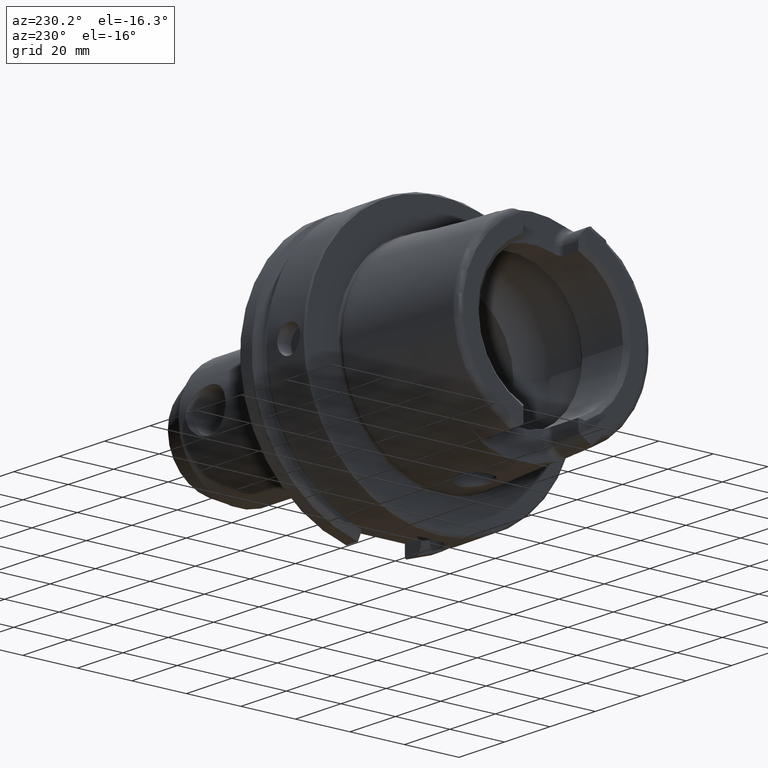
[diagram: clean part render]
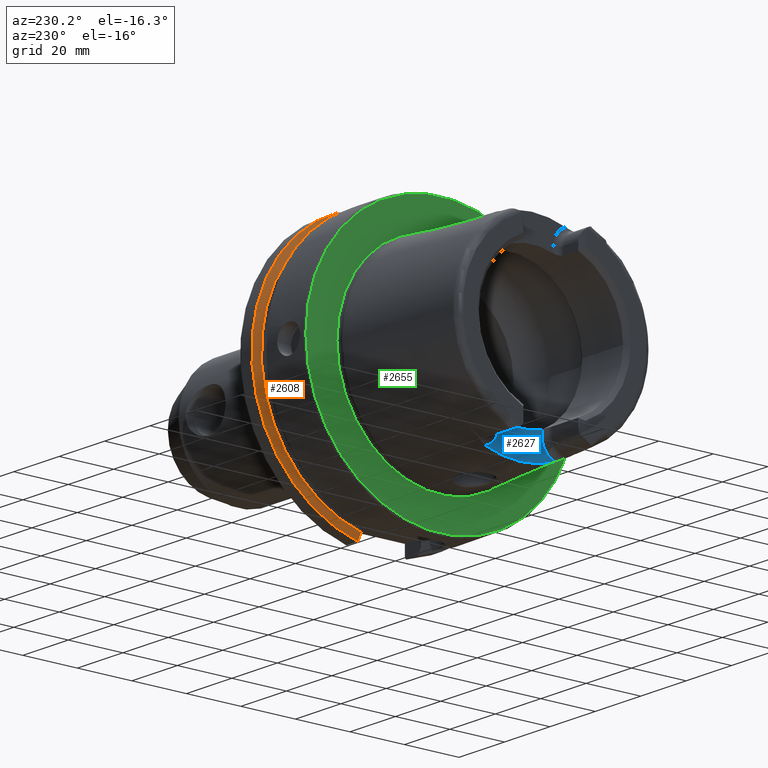
[diagram: same view with three faces highlighted in distinct colors, each labeled with its STEP entity id]
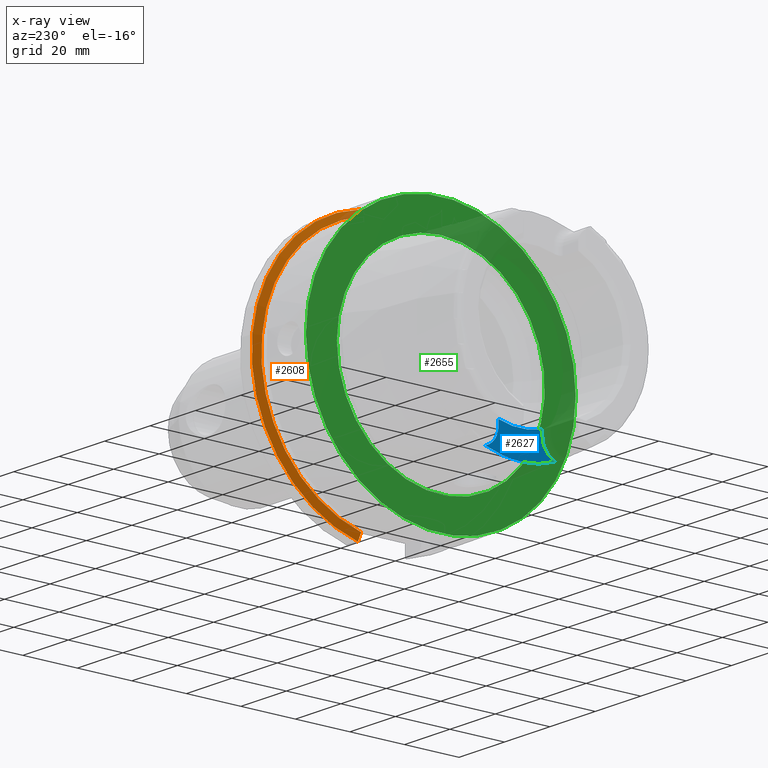
[diagram: x-ray of the same camera — body ghosted, the three highlighted faces saturated]
A machine part, auxiliary view with three faces highlighted in distinct colors.
The next image is the same camera in x-ray (body ghosted, the three faces saturated) — at least one of them is partly hidden behind the body in this view.
Their STEP definitions:

[orange] entity #2608 — the highlighted conical surface has half-angle 60 deg.
#30=(
BOUNDED_CURVE()
B_SPLINE_CURVE(2,(#5565,#5566,#5567),.UNSPECIFIED.,.F.,.F.)
B_SPLINE_CURVE_WITH_KNOTS((3,3),(0.,0.28292349080556),.UNSPECIFIED.)
CURVE()
GEOMETRIC_REPRESENTATION_ITEM()
RATIONAL_B_SPLINE_CURVE((1.,1.0003193410929,1.))
REPRESENTATION_ITEM('')
);
#33=(
BOUNDED_CURVE()
B_SPLINE_CURVE(2,(#5656,#5657,#5658),.UNSPECIFIED.,.F.,.F.)
B_SPLINE_CURVE_WITH_KNOTS((3,3),(0.,0.281931851964124),.UNSPECIFIED.)
CURVE()
GEOMETRIC_REPRESENTATION_ITEM()
RATIONAL_B_SPLINE_CURVE((1.,1.00031639802473,1.))
REPRESENTATION_ITEM('')
);
#81=CONICAL_SURFACE('',#2886,48.7987976320958,1.0471975511966);
#516=CIRCLE('',#2883,50.);
#518=CIRCLE('',#2887,47.5975952641917);
#704=FACE_OUTER_BOUND('',#854,.T.);
#854=EDGE_LOOP('',(#2234,#2235,#2236,#2237));
#1219=VERTEX_POINT('',#5562);
#1220=VERTEX_POINT('',#5564);
#1233=VERTEX_POINT('',#5648);
#1234=VERTEX_POINT('',#5654);
#1575=EDGE_CURVE('',#1220,#1219,#30,.T.);
#1596=EDGE_CURVE('',#1220,#1233,#516,.T.);
#1599=EDGE_CURVE('',#1219,#1234,#518,.T.);
#1600=EDGE_CURVE('',#1234,#1233,#33,.T.);
#2234=ORIENTED_EDGE('',*,*,#1575,.T.);
#2235=ORIENTED_EDGE('',*,*,#1599,.T.);
#2236=ORIENTED_EDGE('',*,*,#1600,.T.);
#2237=ORIENTED_EDGE('',*,*,#1596,.F.);
#2608=ADVANCED_FACE('',(#704),#81,.T.);
#2883=AXIS2_PLACEMENT_3D('',#5649,#3506,#3507);
#2886=AXIS2_PLACEMENT_3D('',#5653,#3513,#3514);
#2887=AXIS2_PLACEMENT_3D('',#5655,#3515,#3516);
#3506=DIRECTION('center_axis',(1.,0.,0.));
#3507=DIRECTION('ref_axis',(0.,0.,-1.));
#3513=DIRECTION('center_axis',(1.,0.,0.));
#3514=DIRECTION('ref_axis',(0.,1.,0.));
#3515=DIRECTION('center_axis',(1.,0.,0.));
#3516=DIRECTION('ref_axis',(0.,0.,-1.));
#5562=CARTESIAN_POINT('',(21.875,11.,-46.3090819919138));
#5564=CARTESIAN_POINT('',(23.2620290209214,11.,-48.7749935930288));
#5565=CARTESIAN_POINT('Ctrl Pts',(23.2620290209214,11.,-48.7749935930288));
#5566=CARTESIAN_POINT('Ctrl Pts',(22.5505288964237,11.,-47.5116880808802));
#5567=CARTESIAN_POINT('Ctrl Pts',(21.875,11.,-46.3090819919138));
#5648=CARTESIAN_POINT('',(23.2620290209214,10.,48.9897948556636));
#5649=CARTESIAN_POINT('Origin',(23.2620290209214,0.,0.));
#5653=CARTESIAN_POINT('Origin',(22.5685145104607,0.,0.));
#5654=CARTESIAN_POINT('',(21.875,10.,46.5352670018535));
#5655=CARTESIAN_POINT('Origin',(21.875,0.,0.));
#5656=CARTESIAN_POINT('Ctrl Pts',(21.875,10.,46.5352670018535));
#5657=CARTESIAN_POINT('Ctrl Pts',(22.5506945724782,10.,47.7323213251992));
#5658=CARTESIAN_POINT('Ctrl Pts',(23.2620290209214,10.,48.9897948556636));

[blue] entity #2627 — the highlighted planar face has unit normal (-1, 0, 0).
#139=PLANE('',#2922);
#259=LINE('',#5767,#383);
#262=LINE('',#5779,#386);
#383=VECTOR('',#3586,10.);
#386=VECTOR('',#3601,10.);
#476=CIRCLE('',#2814,36.25399498998);
#532=CIRCLE('',#2916,6.88);
#535=CIRCLE('',#2923,26.5);
#536=CIRCLE('',#2924,6.88);
#723=FACE_OUTER_BOUND('',#873,.T.);
#873=EDGE_LOOP('',(#2327,#2328,#2329,#2330,#2331,#2332));
#1139=VERTEX_POINT('',#4829);
#1140=VERTEX_POINT('',#4840);
#1248=VERTEX_POINT('',#5751);
#1250=VERTEX_POINT('',#5756);
#1252=VERTEX_POINT('',#5776);
#1253=VERTEX_POINT('',#5778);
#1467=EDGE_CURVE('',#1139,#1140,#476,.T.);
#1628=EDGE_CURVE('',#1248,#1139,#532,.T.);
#1630=EDGE_CURVE('',#1250,#1248,#259,.T.);
#1635=EDGE_CURVE('',#1252,#1250,#535,.T.);
#1636=EDGE_CURVE('',#1253,#1252,#262,.T.);
#1637=EDGE_CURVE('',#1140,#1253,#536,.T.);
#2327=ORIENTED_EDGE('',*,*,#1628,.F.);
#2328=ORIENTED_EDGE('',*,*,#1630,.F.);
#2329=ORIENTED_EDGE('',*,*,#1635,.F.);
#2330=ORIENTED_EDGE('',*,*,#1636,.F.);
#2331=ORIENTED_EDGE('',*,*,#1637,.F.);
#2332=ORIENTED_EDGE('',*,*,#1467,.F.);
#2627=ADVANCED_FACE('',(#723),#139,.T.);
#2814=AXIS2_PLACEMENT_3D('',#4841,#3325,#3326);
#2916=AXIS2_PLACEMENT_3D('',#5753,#3582,#3583);
#2922=AXIS2_PLACEMENT_3D('',#5775,#3597,#3598);
#2923=AXIS2_PLACEMENT_3D('',#5777,#3599,#3600);
#2924=AXIS2_PLACEMENT_3D('',#5780,#3602,#3603);
#3325=DIRECTION('center_axis',(1.,0.,0.));
#3326=DIRECTION('ref_axis',(0.,1.,0.));
#3582=DIRECTION('center_axis',(-1.,0.,0.));
#3583=DIRECTION('ref_axis',(0.,0.510937901715381,-0.8596176246394));
#3586=DIRECTION('',(0.,0.,-1.));
#3597=DIRECTION('center_axis',(-1.,0.,0.));
#3598=DIRECTION('ref_axis',(0.,0.,1.));
#3599=DIRECTION('center_axis',(-1.,0.,0.));
#3600=DIRECTION('ref_axis',(0.,1.,0.));
#3601=DIRECTION('',(0.,0.,1.));
#3602=DIRECTION('center_axis',(-1.,0.,0.));
#3603=DIRECTION('ref_axis',(0.,-0.510937901715381,-0.8596176246394));
#4829=CARTESIAN_POINT('',(-35.,-12.7918651267415,-33.9222690767105));
#4840=CARTESIAN_POINT('',(-35.,12.7918651267415,-33.9222690767105));
#4841=CARTESIAN_POINT('Origin',(-35.,0.,0.));
#5751=CARTESIAN_POINT('',(-35.,-8.01,-27.37));
#5753=CARTESIAN_POINT('Origin',(-35.,-14.89,-27.37));
#5756=CARTESIAN_POINT('',(-35.,-8.01,-25.2604414054862));
#5767=CARTESIAN_POINT('',(-35.,-8.01,-28.685));
#5775=CARTESIAN_POINT('Origin',(-35.,8.88178419700125E-15,-30.));
#5776=CARTESIAN_POINT('',(-35.,8.01,-25.2604414054862));
#5777=CARTESIAN_POINT('Origin',(-35.,0.,0.));
#5778=CARTESIAN_POINT('',(-35.,8.01,-27.37));
#5779=CARTESIAN_POINT('',(-35.,8.01,-25.));
#5780=CARTESIAN_POINT('Origin',(-35.,14.89,-27.37));

[green] entity #2655 — the highlighted planar face has unit normal (-1, 0, 0).
#108=FACE_BOUND('',#905,.T.);
#148=PLANE('',#2991);
#574=CIRCLE('',#2989,38.1200032685857);
#575=CIRCLE('',#2990,38.1200032685857);
#576=CIRCLE('',#2992,49.5);
#577=CIRCLE('',#2993,49.5);
#751=FACE_OUTER_BOUND('',#904,.T.);
#904=EDGE_LOOP('',(#2490,#2491));
#905=EDGE_LOOP('',(#2492,#2493));
#1280=VERTEX_POINT('',#5903);
#1281=VERTEX_POINT('',#5905);
#1282=VERTEX_POINT('',#5909);
#1283=VERTEX_POINT('',#5910);
#1688=EDGE_CURVE('',#1281,#1280,#574,.T.);
#1689=EDGE_CURVE('',#1280,#1281,#575,.T.);
#1690=EDGE_CURVE('',#1282,#1283,#576,.T.);
#1691=EDGE_CURVE('',#1283,#1282,#577,.T.);
#2490=ORIENTED_EDGE('',*,*,#1690,.F.);
#2491=ORIENTED_EDGE('',*,*,#1691,.F.);
#2492=ORIENTED_EDGE('',*,*,#1688,.T.);
#2493=ORIENTED_EDGE('',*,*,#1689,.T.);
#2655=ADVANCED_FACE('',(#751,#108),#148,.T.);
#2989=AXIS2_PLACEMENT_3D('',#5906,#3743,#3744);
#2990=AXIS2_PLACEMENT_3D('',#5907,#3745,#3746);
#2991=AXIS2_PLACEMENT_3D('',#5908,#3747,#3748);
#2992=AXIS2_PLACEMENT_3D('',#5911,#3749,#3750);
#2993=AXIS2_PLACEMENT_3D('',#5912,#3751,#3752);
#3743=DIRECTION('center_axis',(1.,0.,0.));
#3744=DIRECTION('ref_axis',(0.,0.,-1.));
#3745=DIRECTION('center_axis',(1.,0.,0.));
#3746=DIRECTION('ref_axis',(0.,0.,-1.));
#3747=DIRECTION('center_axis',(-1.,0.,0.));
#3748=DIRECTION('ref_axis',(0.,0.,1.));
#3749=DIRECTION('center_axis',(1.,0.,0.));
#3750=DIRECTION('ref_axis',(0.,0.,-1.));
#3751=DIRECTION('center_axis',(1.,0.,0.));
#3752=DIRECTION('ref_axis',(0.,0.,-1.));
#5903=CARTESIAN_POINT('',(0.,-4.66835399863601E-15,38.1200032685857));
#5905=CARTESIAN_POINT('',(0.,38.1200032685857,0.));
#5906=CARTESIAN_POINT('Origin',(0.,0.,0.));
#5907=CARTESIAN_POINT('Origin',(0.,0.,0.));
#5908=CARTESIAN_POINT('Origin',(0.,49.5,0.));
#5909=CARTESIAN_POINT('',(0.,49.5,0.));
#5910=CARTESIAN_POINT('',(8.67361737988404E-16,-49.5,-6.0620016557794E-15));
#5911=CARTESIAN_POINT('Origin',(0.,0.,0.));
#5912=CARTESIAN_POINT('Origin',(0.,0.,0.));